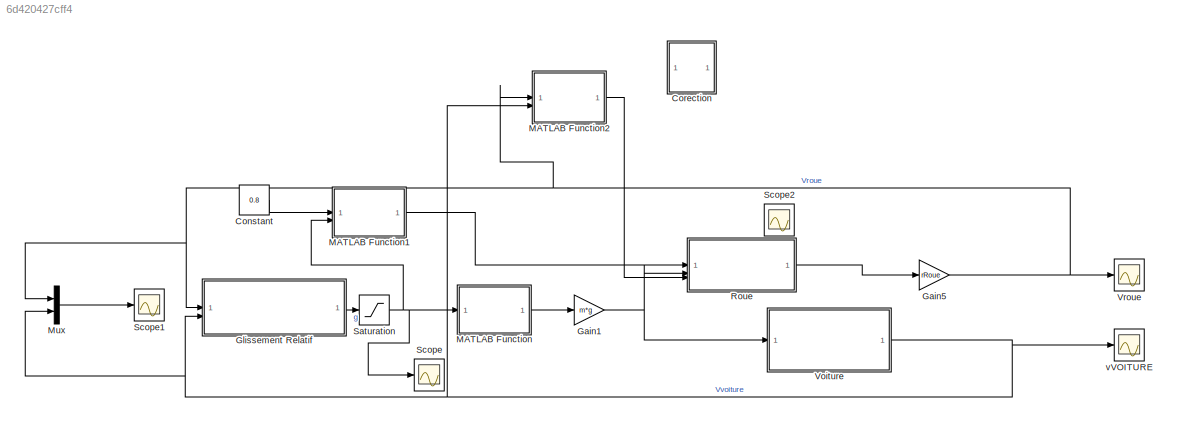
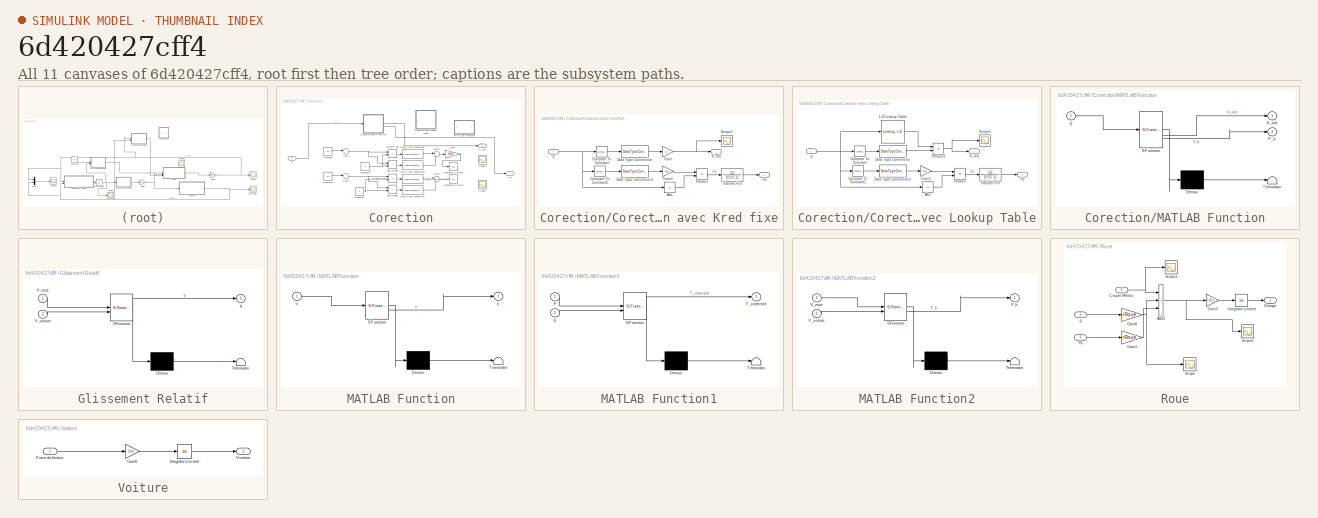
[diagram: thumbnail index - all 11 canvases of the model, root first then tree order]
MODEL slx_6d420427cff4
KIND model
CONFIG AbsTol = auto
CONFIG EnableMultiTasking = off
CONFIG FixedStep = auto
CONFIG InitFcn = Cte_TP_ABS_CHERIF
CONFIG MaxStep = auto
CONFIG MinStep = auto
CONFIG RelTol = 1e-3
CONFIG SampleTimeConstraint = Unconstrained
CONFIG SolverName = ode45
CONFIG StartTime = 0.0
CONFIG StopTime = 20
BLOCK [Constant] Constant
  Value = 0.8
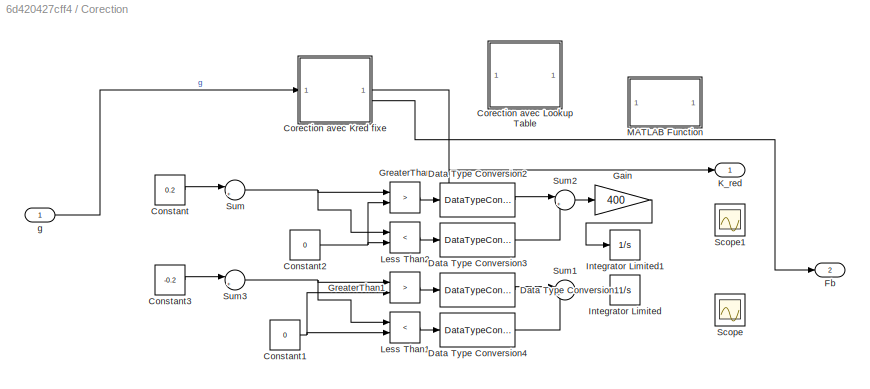
BLOCK [SubSystem] Corection
BLOCK [Constant] Corection/Constant
  Value = 0.2
BLOCK [Constant] Corection/Constant1
  Value = 0
BLOCK [Constant] Corection/Constant2
  Value = 0
BLOCK [Constant] Corection/Constant3
  Value = -0.2
BLOCK [SubSystem] Corection/Corection avec Kred fixe
BLOCK [Abs] Corection/Corection avec Kred fixe/Abs
  SaturateOnIntegerOverflow = off
BLOCK [Reference] Corection/Corection avec Kred fixe/Compare To Constant  REF=simulink/Logic and Bit
Operations/Compare
To Constant
  SourceBlock = simulink/Logic and Bit\nOperations/Compare\nTo Constant
  SourceType = Compare To Constant
BLOCK [Reference] Corection/Corection avec Kred fixe/Compare To Constant1  REF=simulink/Logic and Bit
Operations/Compare
To Constant
  SourceBlock = simulink/Logic and Bit\nOperations/Compare\nTo Constant
  SourceType = Compare To Constant
BLOCK [DataTypeConversion] Corection/Corection avec Kred fixe/Data Type Conversion
  OutDataTypeStr = double
  RndMeth = Floor
  SaturateOnIntegerOverflow = off
BLOCK [DataTypeConversion] Corection/Corection avec Kred fixe/Data Type Conversion1
  OutDataTypeStr = double
  RndMeth = Floor
  SaturateOnIntegerOverflow = off
BLOCK [Outport] Corection/Corection avec Kred fixe/Fb
  Port = 2
BLOCK [Gain] Corection/Corection avec Kred fixe/Gain
  Gain = 0.7
BLOCK [Gain] Corection/Corection avec Kred fixe/Gain1
  Gain = 4000
BLOCK [Outport] Corection/Corection avec Kred fixe/K_red
BLOCK [Product] Corection/Corection avec Kred fixe/Product
BLOCK [Scope] Corection/Corection avec Kred fixe/Scope1
  Floating = off
  NumInputPorts = 1
  ScopeSpecificationString = Simulink.scopes.TimeScopeBlockCfg('CurrentConfiguration', extmgr.ConfigurationSet(extmgr.Configuration('Core','General UI',true),extmgr.Configuration('Core','Source UI',true),extmgr.Configuration('Sources','WiredSimulink',true,'DataLoggingVariableName','ScopeData2'),extmgr.Configuration('Visuals','Time Domain',true,'SerializedDisplays',{struct('MinYLimReal','-0.0875','MaxYLimReal','0.7875','YLabel...<+1488ch>
BLOCK [TransferFcn] Corection/Corection avec Kred fixe/Transfer Fcn
  Denominator = [0.01 1]
BLOCK [Inport] Corection/Corection avec Kred fixe/g
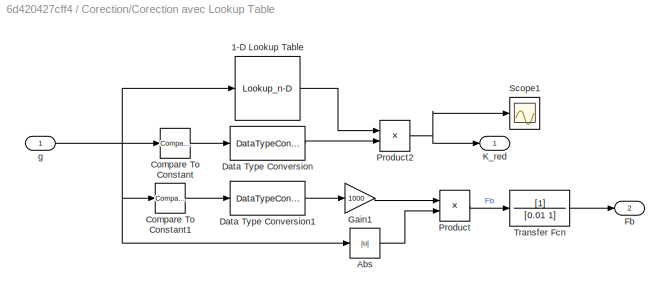
BLOCK [SubSystem] Corection/Corection avec Lookup Table
BLOCK [Lookup_n-D] Corection/Corection avec Lookup Table/1-D Lookup Table
  BreakpointsForDimension1 = [-1.0, -0.9, -0.8, -0.7, -0.6, -0.5, -0.4, -0.3, -0.2, 0]
  InputPortMap = u0
  InternalRulePriority = Speed
  NumberOfTableDimensions = 1
  RndMeth = Simplest
  Table = [0.1, 0.15, 0.25, 0.35, 0.45, 0.55, 0.65, 0.75, 0.85, 1.0]
BLOCK [Abs] Corection/Corection avec Lookup Table/Abs
  SaturateOnIntegerOverflow = off
BLOCK [Reference] Corection/Corection avec Lookup Table/Compare To Constant  REF=simulink/Logic and Bit
Operations/Compare
To Constant
  SourceBlock = simulink/Logic and Bit\nOperations/Compare\nTo Constant
  SourceType = Compare To Constant
BLOCK [Reference] Corection/Corection avec Lookup Table/Compare To Constant1  REF=simulink/Logic and Bit
Operations/Compare
To Constant
  SourceBlock = simulink/Logic and Bit\nOperations/Compare\nTo Constant
  SourceType = Compare To Constant
BLOCK [DataTypeConversion] Corection/Corection avec Lookup Table/Data Type Conversion
  OutDataTypeStr = double
  RndMeth = Floor
  SaturateOnIntegerOverflow = off
BLOCK [DataTypeConversion] Corection/Corection avec Lookup Table/Data Type Conversion1
  OutDataTypeStr = double
  RndMeth = Floor
  SaturateOnIntegerOverflow = off
BLOCK [Outport] Corection/Corection avec Lookup Table/Fb
  Port = 2
BLOCK [Gain] Corection/Corection avec Lookup Table/Gain1
  Gain = 1000
BLOCK [Outport] Corection/Corection avec Lookup Table/K_red
BLOCK [Product] Corection/Corection avec Lookup Table/Product
BLOCK [Product] Corection/Corection avec Lookup Table/Product2
BLOCK [Scope] Corection/Corection avec Lookup Table/Scope1
  Floating = off
  NumInputPorts = 1
  ScopeSpecificationString = Simulink.scopes.TimeScopeBlockCfg('CurrentConfiguration', extmgr.ConfigurationSet(extmgr.Configuration('Core','General UI',true),extmgr.Configuration('Core','Source UI',true),extmgr.Configuration('Sources','WiredSimulink',true,'DataLoggingVariableName','ScopeData2'),extmgr.Configuration('Visuals','Time Domain',true,'SerializedDisplays',{struct('MinYLimReal','-0.10625','MaxYLimReal','0.95625','YLab...<+1498ch>
BLOCK [TransferFcn] Corection/Corection avec Lookup Table/Transfer Fcn
  Denominator = [0.01 1]
BLOCK [Inport] Corection/Corection avec Lookup Table/g
BLOCK [DataTypeConversion] Corection/Data Type Conversion1
  OutDataTypeStr = double
  SaturateOnIntegerOverflow = off
BLOCK [DataTypeConversion] Corection/Data Type Conversion2
  OutDataTypeStr = double
  SaturateOnIntegerOverflow = off
BLOCK [DataTypeConversion] Corection/Data Type Conversion3
  OutDataTypeStr = double
  SaturateOnIntegerOverflow = off
BLOCK [DataTypeConversion] Corection/Data Type Conversion4
  OutDataTypeStr = double
  SaturateOnIntegerOverflow = off
BLOCK [Outport] Corection/Fb
  Port = 2
BLOCK [Gain] Corection/Gain
  Gain = 400
BLOCK [RelationalOperator] Corection/GreaterThan
  InputSameDT = off
  Operator = >
  OutDataTypeStr = boolean
  RndMeth = Simplest
BLOCK [RelationalOperator] Corection/GreaterThan1
  InputSameDT = off
  Operator = >
  OutDataTypeStr = boolean
  RndMeth = Simplest
BLOCK [Integrator] Corection/Integrator Limited
  LimitOutput = on
  LowerSaturationLimit = 0
  UpperSaturationLimit = 1
BLOCK [Integrator] Corection/Integrator Limited1
  LimitOutput = on
  LowerSaturationLimit = 0
  UpperSaturationLimit = 1
BLOCK [Outport] Corection/K_red
BLOCK [RelationalOperator] Corection/Less Than1
  InputSameDT = off
  Operator = <
  OutDataTypeStr = boolean
  RndMeth = Simplest
BLOCK [RelationalOperator] Corection/Less Than2
  InputSameDT = off
  Operator = <
  OutDataTypeStr = boolean
  RndMeth = Simplest
BLOCK [SubSystem] Corection/MATLAB Function
  ErrorFcn = Stateflow.Translate.translate
  PermitHierarchicalResolution = ExplicitOnly
  SFBlockType = MATLAB Function
  TreatAsAtomicUnit = on
BLOCK [Demux] Corection/MATLAB Function/ Demux 
  Outputs = 1
BLOCK [S-Function] Corection/MATLAB Function/ SFunction 
  EnableBusSupport = on
  FunctionName = sf_sfun
  PortCounts = [1 3]
  SFcnIsStateOwnerBlock = off
  SFunctionDeploymentMode = off
  Tag = Stateflow S-Function 2
BLOCK [Terminator] Corection/MATLAB Function/ Terminator 
BLOCK [Outport] Corection/MATLAB Function/F_b
  Port = 2
BLOCK [Outport] Corection/MATLAB Function/K_red
BLOCK [Inport] Corection/MATLAB Function/g
BLOCK [Scope] Corection/Scope
  Floating = off
  NumInputPorts = 1
  ScopeSpecificationString = Simulink.scopes.TimeScopeBlockCfg('CurrentConfiguration', extmgr.ConfigurationSet(extmgr.Configuration('Core','General UI',true),extmgr.Configuration('Core','Source UI',true),extmgr.Configuration('Sources','WiredSimulink',true,'DataLoggingVariableName','ScopeData1'),extmgr.Configuration('Visuals','Time Domain',true,'SerializedDisplays',{struct('MinYLimReal','-1.00000','MaxYLimReal','1.00000','YLab...<+1534ch>
BLOCK [Scope] Corection/Scope1
  Floating = off
  NumInputPorts = 1
  ScopeSpecificationString = Simulink.scopes.TimeScopeBlockCfg('CurrentConfiguration', extmgr.ConfigurationSet(extmgr.Configuration('Core','General UI',true),extmgr.Configuration('Core','Source UI',true),extmgr.Configuration('Sources','WiredSimulink',true,'DataLoggingVariableName','ScopeData3'),extmgr.Configuration('Visuals','Time Domain',true,'SerializedDisplays',{struct('MinYLimReal','-1.00000','MaxYLimReal','1.00000','YLab...<+1534ch>
BLOCK [Sum] Corection/Sum
  Inputs = |+-
BLOCK [Sum] Corection/Sum1
  Inputs = |+-
BLOCK [Sum] Corection/Sum2
  Inputs = |+-
BLOCK [Sum] Corection/Sum3
  Inputs = |+-
BLOCK [Inport] Corection/g
BLOCK [Gain] Gain1
  Gain = m*g
BLOCK [Gain] Gain5
  Gain = rRoue
BLOCK [SubSystem] Glissement Relatif
  ErrorFcn = Stateflow.Translate.translate
  PermitHierarchicalResolution = ExplicitOnly
  SFBlockType = MATLAB Function
  TreatAsAtomicUnit = on
BLOCK [Demux] Glissement Relatif/ Demux 
  Outputs = 1
BLOCK [S-Function] Glissement Relatif/ SFunction 
  EnableBusSupport = on
  FunctionName = sf_sfun
  PortCounts = [2 2]
  SFcnIsStateOwnerBlock = off
  SFunctionDeploymentMode = off
  Tag = Stateflow S-Function 1
BLOCK [Terminator] Glissement Relatif/ Terminator 
BLOCK [Inport] Glissement Relatif/V_roue
BLOCK [Inport] Glissement Relatif/V_voiture
  Port = 2
BLOCK [Outport] Glissement Relatif/g
BLOCK [SubSystem] MATLAB Function
  ErrorFcn = Stateflow.Translate.translate
  PermitHierarchicalResolution = ExplicitOnly
  SFBlockType = MATLAB Function
  TreatAsAtomicUnit = on
BLOCK [Demux] MATLAB Function/ Demux 
  Outputs = 1
BLOCK [S-Function] MATLAB Function/ SFunction 
  EnableBusSupport = on
  FunctionName = sf_sfun
  PortCounts = [1 2]
  SFcnIsStateOwnerBlock = off
  SFunctionDeploymentMode = off
  Tag = Stateflow S-Function 3
BLOCK [Terminator] MATLAB Function/ Terminator 
BLOCK [Inport] MATLAB Function/u
BLOCK [Outport] MATLAB Function/y
BLOCK [SubSystem] MATLAB Function1
  ErrorFcn = Stateflow.Translate.translate
  PermitHierarchicalResolution = ExplicitOnly
  SFBlockType = MATLAB Function
  TreatAsAtomicUnit = on
BLOCK [Demux] MATLAB Function1/ Demux 
  Outputs = 1
BLOCK [S-Function] MATLAB Function1/ SFunction 
  EnableBusSupport = on
  FunctionName = sf_sfun
  PortCounts = [2 2]
  SFcnIsStateOwnerBlock = off
  SFunctionDeploymentMode = off
  Tag = Stateflow S-Function 4
BLOCK [Terminator] MATLAB Function1/ Terminator 
BLOCK [Inport] MATLAB Function1/P
BLOCK [Outport] MATLAB Function1/T_corrected
BLOCK [Inport] MATLAB Function1/g
  Port = 2
BLOCK [SubSystem] MATLAB Function2
  ErrorFcn = Stateflow.Translate.translate
  PermitHierarchicalResolution = ExplicitOnly
  SFBlockType = MATLAB Function
  TreatAsAtomicUnit = on
BLOCK [Demux] MATLAB Function2/ Demux 
  Outputs = 1
BLOCK [S-Function] MATLAB Function2/ SFunction 
  EnableBusSupport = on
  FunctionName = sf_sfun
  PortCounts = [2 2]
  SFcnIsStateOwnerBlock = off
  SFunctionDeploymentMode = off
  Tag = Stateflow S-Function 5
BLOCK [Terminator] MATLAB Function2/ Terminator 
BLOCK [Outport] MATLAB Function2/F_b
BLOCK [Inport] MATLAB Function2/V_roue
BLOCK [Inport] MATLAB Function2/V_voiture
  Port = 2
BLOCK [Mux] Mux
  DisplayOption = bar
  Inputs = 2
BLOCK [SubSystem] Roue
BLOCK [Sum] Roue/Add3
  IconShape = rectangular
  Inputs = +--
BLOCK [Inport] Roue/Couple Moteur
BLOCK [Inport] Roue/Fb
  Port = 3
BLOCK [Gain] Roue/Gain1
  Gain = rRoue
BLOCK [Gain] Roue/Gain3
  Gain = 1/0.5
BLOCK [Gain] Roue/Gain8
  Gain = rRoue
BLOCK [Integrator] Roue/Integrator Limited
  LimitOutput = on
  LowerSaturationLimit = 0
  UpperSaturationLimit = 1000
BLOCK [Outport] Roue/Omega
BLOCK [Scope] Roue/Scope
  Floating = off
  NumInputPorts = 1
  ScopeSpecificationString = Simulink.scopes.TimeScopeBlockCfg('CurrentConfiguration', extmgr.ConfigurationSet(extmgr.Configuration('Core','General UI',true),extmgr.Configuration('Core','Source UI',true),extmgr.Configuration('Sources','WiredSimulink',true,'DataLoggingVariableName','ScopeData1'),extmgr.Configuration('Visuals','Time Domain',true,'SerializedDisplays',{struct('MinYLimReal','-2.97249','MaxYLimReal','26.7524','YLab...<+1495ch>
BLOCK [Scope] Roue/Scope1
  Floating = off
  NumInputPorts = 1
  ScopeSpecificationString = Simulink.scopes.TimeScopeBlockCfg('CurrentConfiguration', extmgr.ConfigurationSet(extmgr.Configuration('Core','General UI',true),extmgr.Configuration('Core','Source UI',true),extmgr.Configuration('Sources','WiredSimulink',true,'DataLoggingVariableName','ScopeData2'),extmgr.Configuration('Visuals','Time Domain',true,'SerializedDisplays',{struct('MinYLimReal','23.92792','MaxYLimReal','24.00801','YLa...<+1509ch>
BLOCK [Scope] Roue/Scope2
  Floating = off
  NumInputPorts = 1
  ScopeSpecificationString = Simulink.scopes.TimeScopeBlockCfg('CurrentConfiguration', extmgr.ConfigurationSet(extmgr.Configuration('Core','General UI',true),extmgr.Configuration('Core','Source UI',true),extmgr.Configuration('Sources','WiredSimulink',true,'DataLoggingVariableName','ScopeData3'),extmgr.Configuration('Visuals','Time Domain',true,'SerializedDisplays',{struct('MinYLimReal','-2.76271','MaxYLimReal','26.97363','YLa...<+1498ch>
BLOCK [Inport] Roue/g
  Port = 2
BLOCK [Saturate] Saturation
  LowerLimit = -1
  UpperLimit = 1
BLOCK [Scope] Scope
  Floating = off
  NumInputPorts = 1
  ScopeSpecificationString = Simulink.scopes.TimeScopeBlockCfg('CurrentConfiguration', extmgr.ConfigurationSet(extmgr.Configuration('Core','General UI',true),extmgr.Configuration('Core','Source UI',true),extmgr.Configuration('Sources','WiredSimulink',true,'DataLoggingVariableName','ScopeData1'),extmgr.Configuration('Visuals','Time Domain',true,'SerializedDisplays',{struct('MinYLimReal','-0.00101','MaxYLimReal','0.00909','YLab...<+1500ch>
BLOCK [Scope] Scope1
  Floating = off
  NumInputPorts = 1
  ScopeSpecificationString = Simulink.scopes.TimeScopeBlockCfg('CurrentConfiguration', extmgr.ConfigurationSet(extmgr.Configuration('Core','General UI',true),extmgr.Configuration('Core','Source UI',true),extmgr.Configuration('Sources','WiredSimulink',true,'DataLoggingVariableName','ScopeData1'),extmgr.Configuration('Visuals','Time Domain',true,'SerializedDisplays',{struct('MinYLimReal','-4.83801','MaxYLimReal','43.54208','YLa...<+1506ch>
BLOCK [Scope] Scope2
  Floating = off
  NumInputPorts = 1
  ScopeSpecificationString = Simulink.scopes.TimeScopeBlockCfg('CurrentConfiguration', extmgr.ConfigurationSet(extmgr.Configuration('Core','General UI',true),extmgr.Configuration('Core','Source UI',true),extmgr.Configuration('Sources','WiredSimulink',true,'DataLoggingVariableName','ScopeData3'),extmgr.Configuration('Visuals','Time Domain',true,'SerializedDisplays',{struct('MinYLimReal','-1.00000','MaxYLimReal','1.00000','YLab...<+1534ch>
BLOCK [SubSystem] Voiture
BLOCK [Inport] Voiture/Force de friction
BLOCK [Gain] Voiture/Gain6
  Gain = 1/m
BLOCK [Integrator] Voiture/Integrator Limited
  LimitOutput = on
  LowerSaturationLimit = 0
  UpperSaturationLimit = +inf
BLOCK [Outport] Voiture/Vvoiture
BLOCK [Scope] Vroue
  Floating = off
  NumInputPorts = 1
  ScopeSpecificationString = Simulink.scopes.TimeScopeBlockCfg('CurrentConfiguration', extmgr.ConfigurationSet(extmgr.Configuration('Core','General UI',true),extmgr.Configuration('Core','Source UI',true),extmgr.Configuration('Sources','WiredSimulink',true),extmgr.Configuration('Visuals','Time Domain',true,'SerializedDisplays',{struct('MinYLimReal','-4.83801','MaxYLimReal','43.54208','YLabelReal','','MinYLimMag','0.00000','Max...<+1460ch>
BLOCK [Scope] vVOITURE 
  Floating = off
  NumInputPorts = 1
  ScopeSpecificationString = Simulink.scopes.TimeScopeBlockCfg('CurrentConfiguration', extmgr.ConfigurationSet(extmgr.Configuration('Core','General UI',true),extmgr.Configuration('Core','Source UI',true),extmgr.Configuration('Sources','WiredSimulink',true,'DataLoggingVariableName','ScopeData1'),extmgr.Configuration('Visuals','Time Domain',true,'SerializedDisplays',{struct('MinYLimReal','-0.19862','MaxYLimReal','1.78759','YLab...<+1498ch>
LINE Constant:1 -> MATLAB Function1:1
NET Corection/Constant1:1 -> Corection/GreaterThan1:2, Corection/Less Than1:2
NET Corection/Constant2:1 -> Corection/GreaterThan:2, Corection/Less Than2:2
LINE Corection/Constant3:1 -> Corection/Sum3:1
LINE Corection/Constant:1 -> Corection/Sum:1
LINE Corection/Corection avec Kred fixe/Abs:1 -> Corection/Corection avec Kred fixe/Product:2
LINE Corection/Corection avec Kred fixe/Compare To Constant1:1 -> Corection/Corection avec Kred fixe/Data Type Conversion1:1
LINE Corection/Corection avec Kred fixe/Compare To Constant:1 -> Corection/Corection avec Kred fixe/Data Type Conversion:1
LINE Corection/Corection avec Kred fixe/Data Type Conversion1:1 -> Corection/Corection avec Kred fixe/Gain1:1
LINE Corection/Corection avec Kred fixe/Data Type Conversion:1 -> Corection/Corection avec Kred fixe/Gain:1
LINE Corection/Corection avec Kred fixe/Gain1:1 -> Corection/Corection avec Kred fixe/Product:1
NET Corection/Corection avec Kred fixe/Gain:1 -> Corection/Corection avec Kred fixe/K_red:1, Corection/Corection avec Kred fixe/Scope1:1
LINE Corection/Corection avec Kred fixe/Product:1 -> Corection/Corection avec Kred fixe/Transfer Fcn:1
LINE Corection/Corection avec Kred fixe/Transfer Fcn:1 -> Corection/Corection avec Kred fixe/Fb:1
NET Corection/Corection avec Kred fixe/g:1 -> Corection/Corection avec Kred fixe/Abs:1, Corection/Corection avec Kred fixe/Compare To Constant1:1, Corection/Corection avec Kred fixe/Compare To Constant:1
LINE Corection/Corection avec Kred fixe:1 -> Corection/K_red:1
LINE Corection/Corection avec Kred fixe:2 -> Corection/Fb:1
LINE Corection/Corection avec Lookup Table/1-D Lookup Table:1 -> Corection/Corection avec Lookup Table/Product2:1
LINE Corection/Corection avec Lookup Table/Abs:1 -> Corection/Corection avec Lookup Table/Product:2
LINE Corection/Corection avec Lookup Table/Compare To Constant1:1 -> Corection/Corection avec Lookup Table/Data Type Conversion1:1
LINE Corection/Corection avec Lookup Table/Compare To Constant:1 -> Corection/Corection avec Lookup Table/Data Type Conversion:1
LINE Corection/Corection avec Lookup Table/Data Type Conversion1:1 -> Corection/Corection avec Lookup Table/Gain1:1
LINE Corection/Corection avec Lookup Table/Data Type Conversion:1 -> Corection/Corection avec Lookup Table/Product2:2
LINE Corection/Corection avec Lookup Table/Gain1:1 -> Corection/Corection avec Lookup Table/Product:1
NET Corection/Corection avec Lookup Table/Product2:1 -> Corection/Corection avec Lookup Table/K_red:1, Corection/Corection avec Lookup Table/Scope1:1
LINE Corection/Corection avec Lookup Table/Product:1 -> Corection/Corection avec Lookup Table/Transfer Fcn:1
LINE Corection/Corection avec Lookup Table/Transfer Fcn:1 -> Corection/Corection avec Lookup Table/Fb:1
NET Corection/Corection avec Lookup Table/g:1 -> Corection/Corection avec Lookup Table/1-D Lookup Table:1, Corection/Corection avec Lookup Table/Abs:1, Corection/Corection avec Lookup Table/Compare To Constant1:1, Corection/Corection avec Lookup Table/Compare To Constant:1
LINE Corection/Data Type Conversion1:1 -> Corection/Sum1:1
LINE Corection/Data Type Conversion2:1 -> Corection/Sum2:1
LINE Corection/Data Type Conversion3:1 -> Corection/Sum2:2
LINE Corection/Data Type Conversion4:1 -> Corection/Sum1:2
LINE Corection/Gain:1 -> Corection/Integrator Limited1:1
LINE Corection/GreaterThan1:1 -> Corection/Data Type Conversion1:1
LINE Corection/GreaterThan:1 -> Corection/Data Type Conversion2:1
LINE Corection/Less Than1:1 -> Corection/Data Type Conversion4:1
LINE Corection/Less Than2:1 -> Corection/Data Type Conversion3:1
LINE Corection/Sum1:1 -> Corection/Integrator Limited:1
LINE Corection/Sum2:1 -> Corection/Gain:1
NET Corection/Sum3:1 -> Corection/GreaterThan1:1, Corection/Less Than1:1
NET Corection/Sum:1 -> Corection/GreaterThan:1, Corection/Less Than2:1
LINE Corection/g:1 -> Corection/Corection avec Kred fixe:1
NET Gain1:1 -> Roue:2, Voiture:1
NET Gain5:1 -> Glissement Relatif:1, MATLAB Function2:1, Mux:1, Vroue:1
LINE Glissement Relatif:1 -> Saturation:1
LINE MATLAB Function1:1 -> Roue:1
LINE MATLAB Function2:1 -> Roue:3
LINE MATLAB Function:1 -> Gain1:1
LINE Mux:1 -> Scope1:1
NET Roue/Add3:1 -> Roue/Gain3:1, Roue/Scope2:1
NET Roue/Couple Moteur:1 -> Roue/Add3:1, Roue/Scope1:1
LINE Roue/Fb:1 -> Roue/Gain1:1
LINE Roue/Gain1:1 -> Roue/Add3:3
LINE Roue/Gain3:1 -> Roue/Integrator Limited:1
NET Roue/Gain8:1 -> Roue/Add3:2, Roue/Scope:1
LINE Roue/Integrator Limited:1 -> Roue/Omega:1
LINE Roue/g:1 -> Roue/Gain8:1
LINE Roue:1 -> Gain5:1
NET Saturation:1 -> MATLAB Function1:2, MATLAB Function:1, Scope:1
LINE Voiture/Force de friction:1 -> Voiture/Gain6:1
LINE Voiture/Gain6:1 -> Voiture/Integrator Limited:1
LINE Voiture/Integrator Limited:1 -> Voiture/Vvoiture:1
NET Voiture:1 -> Glissement Relatif:2, MATLAB Function2:2, Mux:2, vVOITURE :1
note: NET lines group one-source signal fan-out (src -> all destinations, sorted); 1:1 wires keep LINE
CHART Corection/MATLAB Function states=1 transitions=1
  STATE_LABEL 'eML_blk_kernel()'
  STATE_LABEL 'SCRIPT:\nfunction [K_red, F_b] = traction_control(g)\n    % Paramètres\n    g_seuil_haut = 0.2;  % Seuil supérieur de glissement\n    g_seuil_bas = -0.2;  % Seuil inférieur de glissement\n    K_frein = 1000;      % Gain pour la force de freinage\n    \n    % Lookup Table pour K_red\n    g_points = [-1, -0.9, -0.8, -0.7, -0.6, -0.5, -0.4, -0.3, -0.2, 0];\n    K_red_points = [0.1, 0.15, 0.25, 0.35, 0.45, 0.5...<+545ch>'
CHART MATLAB Function states=1 transitions=1
  STATE_LABEL 'eML_blk_kernel()'
  STATE_LABEL 'SCRIPT:\nfunction y = fcn(u)\n\ny = u;\n'
CHART MATLAB Function1 states=1 transitions=1
  STATE_LABEL 'eML_blk_kernel()'
  STATE_LABEL 'SCRIPT:\nfunction T_corrected = correct_motor_torque(P, g)\n    % Function to correct the motor torque based on pedal input and slip ratio\n    % All parameters are defined internally.\n    %\n    % Inputs:\n    %   P - Pedal position (0 to 1)\n    %   g - Current slip ratio (dimensionless)\n    %\n    % Output:\n    %   T_corrected - Corrected motor torque (N.m)\n\n    % Internal parameters\n    g_cible = 0.2...<+1061ch>'
CHART MATLAB Function2 states=1 transitions=1
  STATE_LABEL 'eML_blk_kernel()'
  STATE_LABEL 'SCRIPT:\nfunction F_b = braking_force(V_roue, V_voiture)\n    % Compute braking torque based on the slip\n    %\n    % Inputs:\n    %   V_roue    - Speed of the wheel (rad/s or m/s)\n    %   V_voiture - Speed of the vehicle (rad/s or m/s)\n    %   R_w       - Wheel radius (m)\n    %\n    % Output:\n    %   T_b - Braking torque (N.m)\n\n    % Braking gain (K_f) - Tuning parameter\n    K_f = 0;  % Adjust this va...<+109ch>'
CHART Glissement Relatif states=1 transitions=1
  STATE_LABEL 'eML_blk_kernel()'
  STATE_LABEL 'SCRIPT:\nfunction g = calcGlissement(V_roue, V_voiture)\n    g = (V_roue-V_voiture)/(abs(V_voiture)+0.001);\nend\n'
CHART  states=0 transitions=0
CHART  states=0 transitions=0
CHART  states=0 transitions=0
CHART  states=0 transitions=0
CHART  states=0 transitions=0
